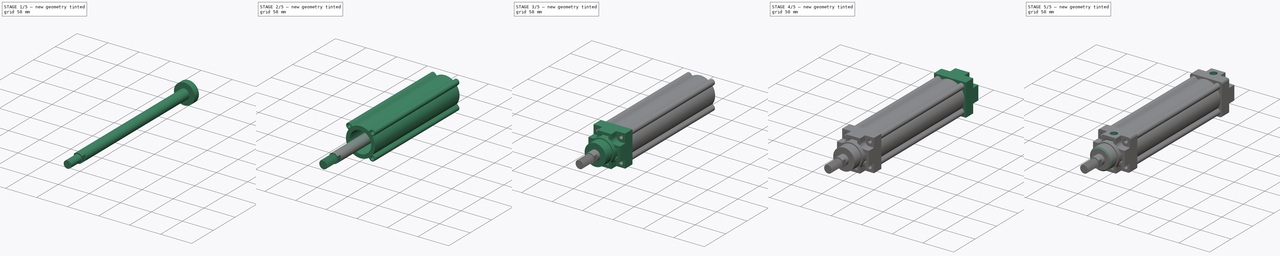
[diagram: build sequence overview — one tinted view per stage of 5, left to right]
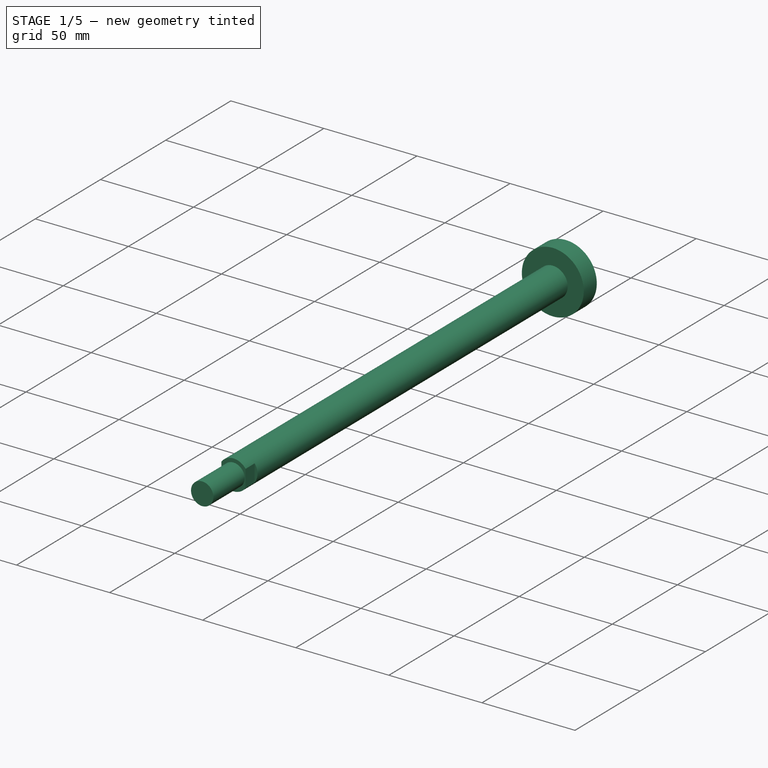
[diagram: stage 1 of 5 — iso view after this stage's code; geometry added in this stage tinted green]
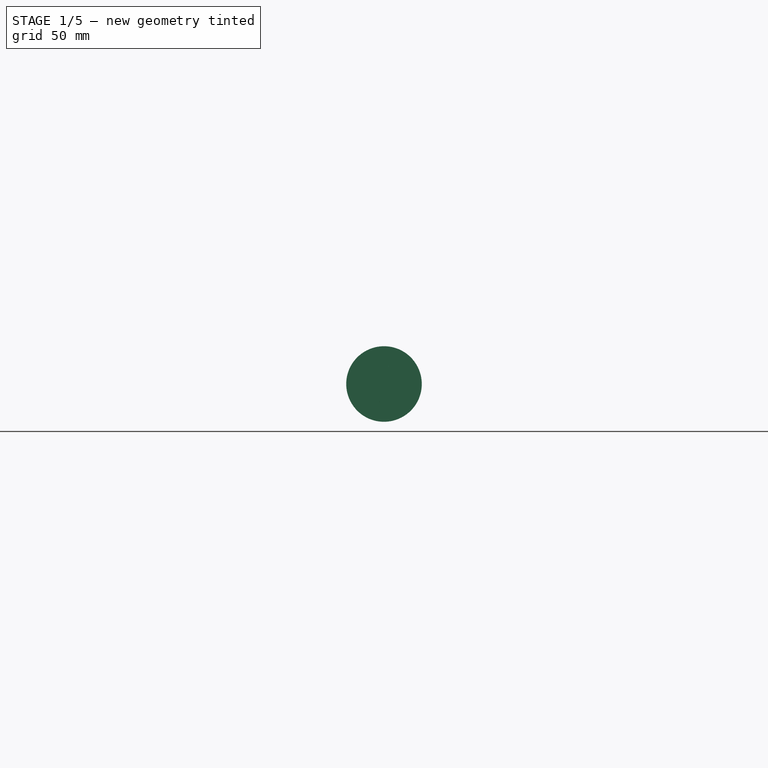
[diagram: stage 1 of 5 — front view after this stage's code; geometry added in this stage tinted green]
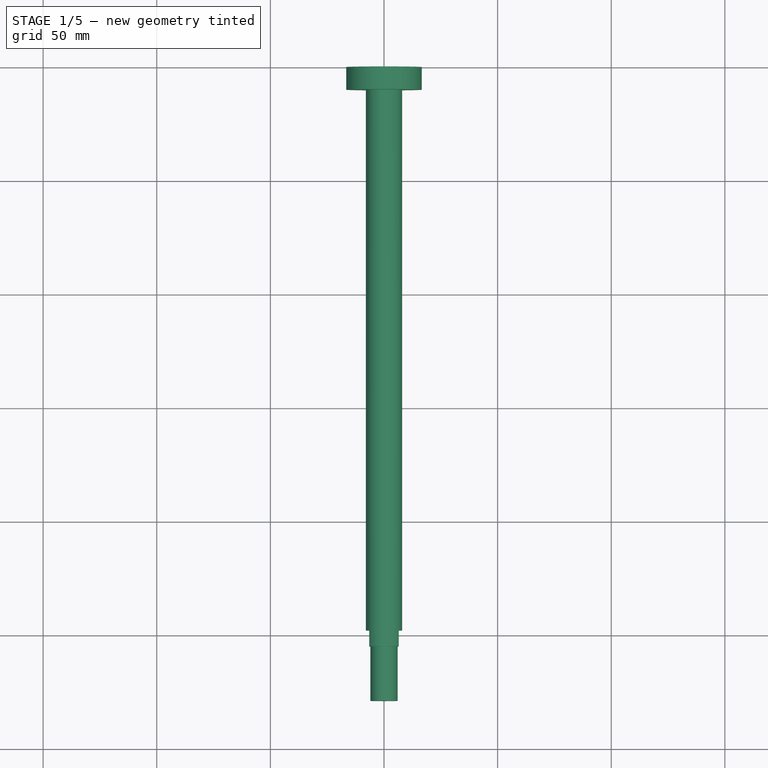
[diagram: stage 1 of 5 — top view after this stage's code; geometry added in this stage tinted green]
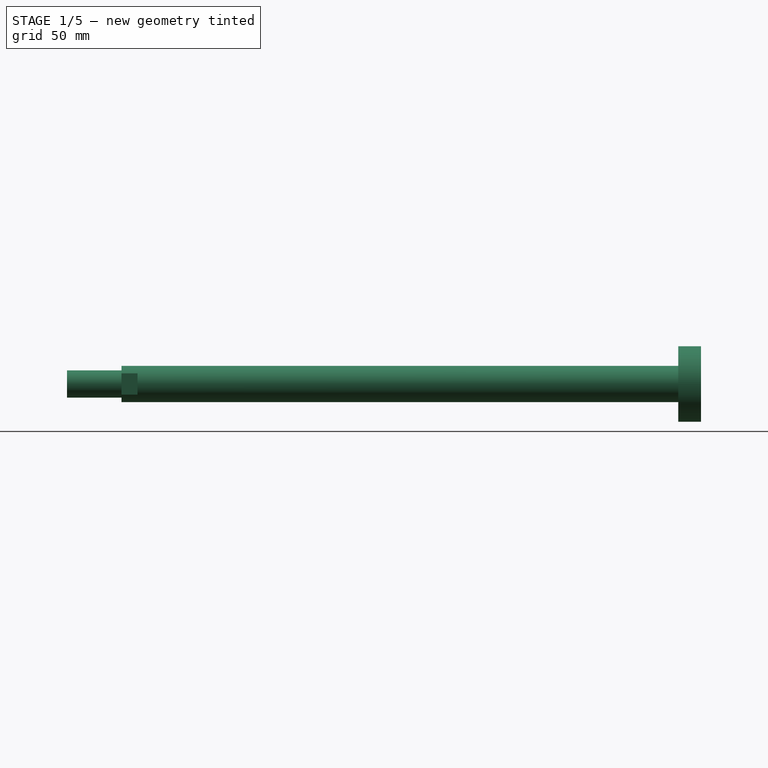
[diagram: stage 1 of 5 — right view after this stage's code; geometry added in this stage tinted green]
FCSTD DOCUMENT  (FreeCAD 0.17R13509 (Git))
Label: DA-40-XXX-TCA
License: CreativeCommons Attribution-ShareAlike
LicenseURL: http://creativecommons.org/licenses/by-sa/4.0/
objects: Sketcher::SketchObject×13, PartDesign::Pad×10, PartDesign::Body×3, PartDesign::Mirrored×2, PartDesign::Pocket×2, Spreadsheet::Sheet×1, PartDesign::Fillet×1, PartDesign::Chamfer×1, Part::Helix×1, App::MeasureDistance×1, PartDesign::ShapeBinder×1, PartDesign::AdditivePipe×1, Part::Fuse×1, App::Part×1
note: 49 computed .brp shape members not serialized (recipe doc carries the construction recipe); baked Part::Feature solids carry a one-line shape summary decoded from their .brp

FEATURE [PartDesign::Body] Body  label="Barrel+Endcap"
  Group = -> [Sketch,Pad,Sketch001,Pad001,Sketch002,Pad002,Sketch003,Pad003,Sketch004,Pad004,Mirrored,Mirrored001,Sketch005,Pad005,Fillet,Chamfer,Sketch006,Pocket,Sketch007,Pad006]
  Origin = -> Origin001
  Tip = -> Pad006
FEATURE [Sketcher::SketchObject] Sketch008
  MapMode = 5
  Placement = pos=(0,0,0) rot=(1,0,0;1.5708rad)
  Support = -> [XZ_Plane002]
  expr: Constraints[1] = Medidas.b / 2 * 0.94999999999999996
  sketch-geometry (1):
    g0: Circle CenterX=0 CenterY=0 CenterZ=0 NormalX=0 NormalY=0 NormalZ=1 AngleXU=0 Radius=16.625
  constraints (2):
    c: Coincident(g0,g-1)
    c: Radius(g0) = 16.625
FEATURE [PartDesign::Pad] Pad007
  Length = 10
  Length2 = 100
  Placement = pos=(0,0,0) rot=(1,0,0;1.5708rad)
  Profile = -> Sketch008
  Refine = true
  Type = 0
FEATURE [Sketcher::SketchObject] Sketch009
  MapMode = 5
  Placement = pos=(0,0,0) rot=(-1,0,0;1.5708rad)
  Support = -> [Pad007]
  expr: Constraints[1] = Medidas.mmm / 2
  sketch-geometry (1):
    g0: Circle CenterX=0 CenterY=0 CenterZ=0 NormalX=0 NormalY=0 NormalZ=1 AngleXU=0 Radius=8
  constraints (2):
    c: Coincident(g0,g-1)
    c: Radius(g0) = 8
FEATURE [PartDesign::Pad] Pad008
  BaseFeature = -> Pad007
  Length = 255
  Length2 = 100
  Placement = pos=(0,0,0) rot=(1,0,0;1.5708rad)
  Profile = -> Sketch009
  Refine = true
  Reversed = true
  Type = 0
  expr: Length = Medidas.l8 + Medidas.carrera
FEATURE [Sketcher::SketchObject] Sketch010
  MapMode = 5
  Placement = pos=(0,-255,-2.6e-11) rot=(1,0,0;1.5708rad)
  Support = -> [Pad008]
  expr: Constraints[22] = Medidas.sw
  expr: Constraints[19] = Medidas.sw
  sketch-geometry (8):
    g0: LineSegment StartX=-19.5 StartY=6.5 StartZ=0 EndX=-6.5 EndY=6.5 EndZ=0
    g1: LineSegment StartX=-6.5 StartY=6.5 StartZ=0 EndX=-6.5 EndY=-6.5 EndZ=0
    g2: LineSegment StartX=-6.5 StartY=-6.5 StartZ=0 EndX=-19.5 EndY=-6.5 EndZ=0
    g3: LineSegment StartX=-19.5 StartY=-6.5 StartZ=0 EndX=-19.5 EndY=6.5 EndZ=0
    g4: LineSegment StartX=19.5 StartY=6.5 StartZ=0 EndX=6.5 EndY=6.5 EndZ=0
    g5: LineSegment StartX=6.5 StartY=6.5 StartZ=0 EndX=6.5 EndY=-6.5 EndZ=0
    g6: LineSegment StartX=6.5 StartY=-6.5 StartZ=0 EndX=19.5 EndY=-6.5 EndZ=0
    g7: LineSegment StartX=19.5 StartY=-6.5 StartZ=0 EndX=19.5 EndY=6.5 EndZ=0
  constraints (23):
    c: Coincident(g0,g1)
    c: Coincident(g1,g2)
    c: Coincident(g2,g3)
    c: Coincident(g3,g0)
    c: Horizontal(g0)
    c: Horizontal(g2)
    c: Vertical(g1)
    c: Vertical(g3)
    c: Coincident(g4,g5)
    c: Coincident(g5,g6)
    c: Coincident(g6,g7)
    c: Coincident(g7,g4)
    c: Horizontal(g4)
    c: Horizontal(g6)
    c: Vertical(g5)
    c: Vertical(g7)
    c: Symmetric(g0,g4,g-2)
    c: Equal(g5,g1)
    c: Equal(g6,g2)
    c: DistanceX(g0,g4) = 13
    c: Symmetric(g0,g2,g-1)
    c: Equal(g0,g3)
    c: DistanceX(g0,g0) = 13
FEATURE [PartDesign::Pocket] Pocket001
  BaseFeature = -> Pad008
  Length = 7
  Length2 = 100
  Placement = pos=(0,0,0) rot=(1,0,0;1.5708rad)
  Profile = -> Sketch010
  Refine = true
  Type = 0
  expr: Length = Medidas.kw
FEATURE [PartDesign::Body] Body002  label="Thread"
  Group = -> [Sketch012,AdditivePipe,ReferenceHelix001]
  Origin = -> Origin003
  Placement = pos=(0,-279,0) rot=(0,0,1;0rad)
  Tip = -> AdditivePipe
  expr: Placement.Base.y = -Medidas.l8 - Medidas.carrera - Medidas.l2 - 3
FEATURE [PartDesign::Pad] Pad009
  BaseFeature = -> Pocket001
  Length = 24
  Length2 = 100
  Placement = pos=(0,0,0) rot=(1,0,0;1.5708rad)
  Profile = -> Sketch011
  Refine = true
  Type = 0
  expr: Length = Medidas.am
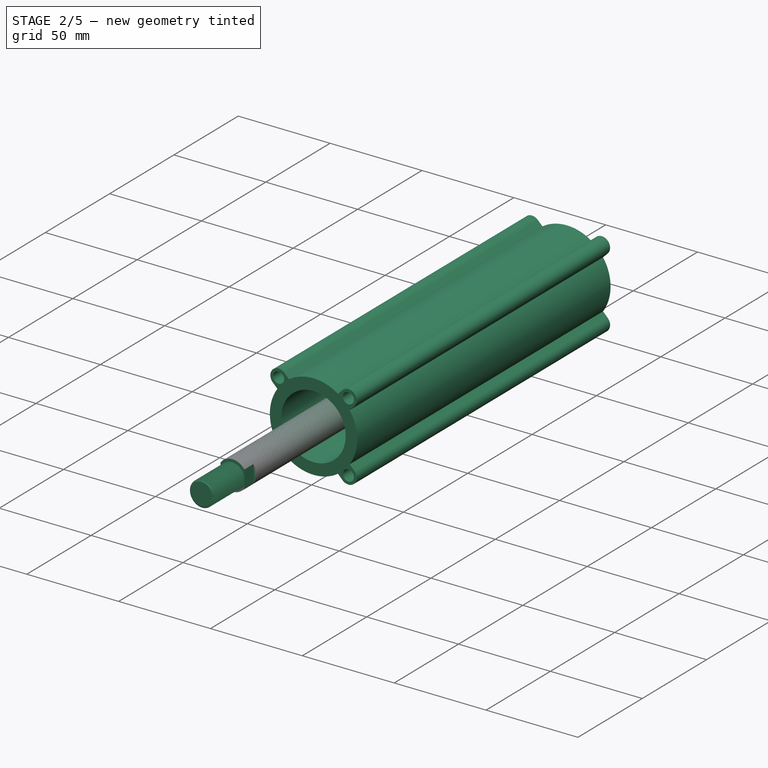
[diagram: stage 2 of 5 — iso view after this stage's code; geometry added in this stage tinted green]
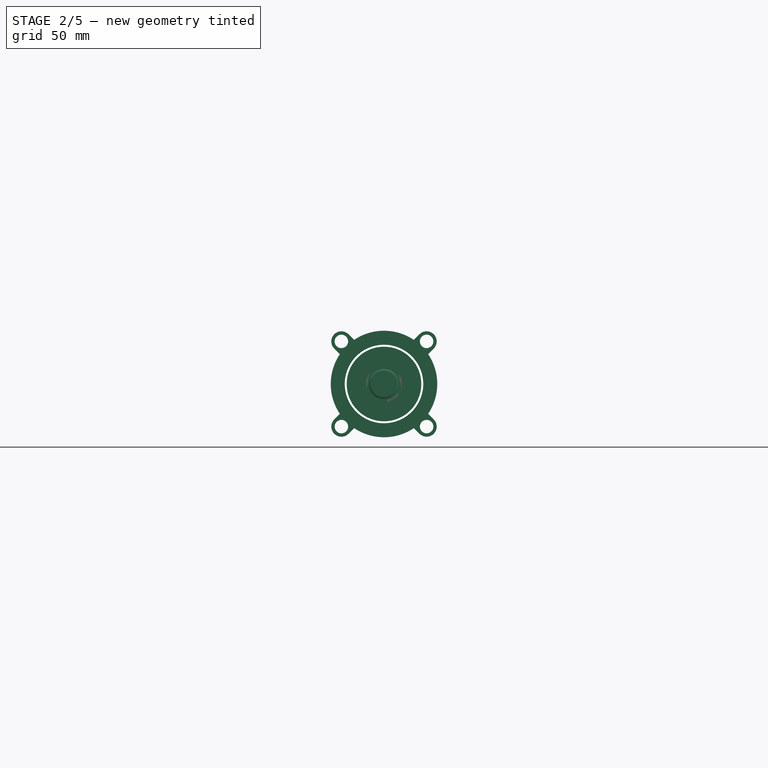
[diagram: stage 2 of 5 — front view after this stage's code; geometry added in this stage tinted green]
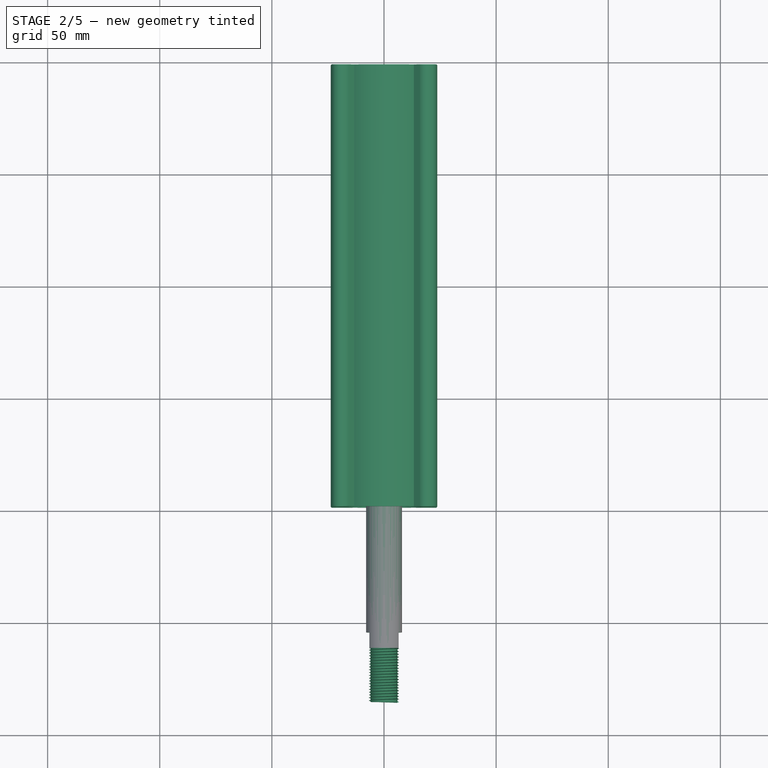
[diagram: stage 2 of 5 — top view after this stage's code; geometry added in this stage tinted green]
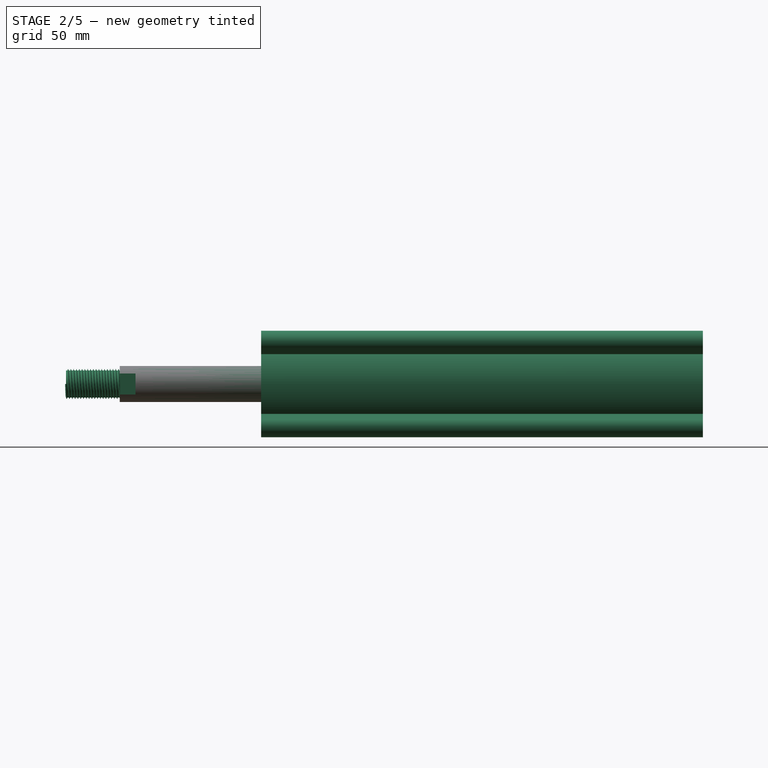
[diagram: stage 2 of 5 — right view after this stage's code; geometry added in this stage tinted green]
FEATURE [Spreadsheet::Sheet] Spreadsheet  label="Medidas"
  cells = A1=Medidas Tabla; A2=CARRERRA001; B2(carrera)=150; C2=Delta Carrera; D2(delta)=5; A3=Ø; B3(diametro)=40; A4=AM; B4(am)=24; A5=B; B5(b)=35; A6=BG; B6(bg)=12; A7=EE; B7(ee)=52; A8=EEE; B8(eee)=11; C8=1/4 NPT; A9=GG; B9(gg)=29; A10=KK; B10(kk)=12; C10(kkp)=1.25; A11=KV; B11(kv)=19; A12=KW; B12(kw)=7; A13=L2; B13(l2)=21; A14=L8; B14(l8)=105; A15=MMM; B15(mmm)=16; A16=PL; B16(pl)=11.5; A17=RT; B17(rt)=6; A18=SW; B18(sw)=13; A19=TG; B19(tg)=38; A20=VA; B20(va)=4; A21=VD; B21(vd)=6; A22=VF; B22(vf)=12; A23=VG; B23(vg)=54; A24=WH; B24(wh)=30; A25=XD; B25(xd)=160; A26=AH; B26(ah)=36; A27=SA; B27(sa)=161; A28=XA; B28(xa)=163; A29=Peso Carrera 0; B29=730; A30=(gr.) Cada 10mm; B30=32; A31=Peso Total; B31==B29 + B2 / 10 * B30
FEATURE [Sketcher::SketchObject] Sketch
  MapMode = 5
  Placement = pos=(0,0,0) rot=(1,0,0;1.5708rad)
  Support = -> [XZ_Plane001]
  expr: Constraints[76] = Medidas.rt / 2 * 1.5
  expr: Constraints[72] = Medidas.tg
  expr: Constraints[74] = Medidas.tg * 0.625
  expr: Constraints[75] = Medidas.b / 2
  expr: Constraints[73] = Medidas.rt / 2
  sketch-geometry (29):
    g0: LineSegment [constr] StartX=-19 StartY=19 StartZ=0 EndX=19 EndY=19 EndZ=0
    g1: LineSegment [constr] StartX=19 StartY=19 StartZ=0 EndX=19 EndY=-19 EndZ=0
    g2: LineSegment [constr] StartX=19 StartY=-19 StartZ=0 EndX=-19 EndY=-19 EndZ=0
    g3: LineSegment [constr] StartX=-19 StartY=-19 StartZ=0 EndX=-19 EndY=19 EndZ=0
    g4: LineSegment [constr] StartX=-19 StartY=19 StartZ=0 EndX=0 EndY=0 EndZ=0
    g5: LineSegment [constr] StartX=0 StartY=0 StartZ=0 EndX=19 EndY=-19 EndZ=0
    g6: LineSegment StartX=22.182 StartY=15.818 StartZ=0 EndX=19.6716 EndY=13.3076 EndZ=0
    g7: LineSegment StartX=13.3076 StartY=19.6716 StartZ=0 EndX=15.818 EndY=22.182 EndZ=0
    g8: LineSegment [constr] StartX=0 StartY=0 StartZ=0 EndX=23.75 EndY=0 EndZ=0
    g9: ArcOfCircle CenterX=19 CenterY=19 CenterZ=0 NormalX=0 NormalY=0 NormalZ=1 AngleXU=0 Radius=4.5 StartAngle=5.49779 EndAngle=8.63938
    g10: ArcOfCircle CenterX=0 CenterY=0 CenterZ=0 NormalX=0 NormalY=0 NormalZ=1 AngleXU=0 Radius=23.75 StartAngle=0.976024 EndAngle=2.16557
    g11: LineSegment StartX=22.182 StartY=-15.818 StartZ=0 EndX=19.6716 EndY=-13.3076 EndZ=0
    g12: ArcOfCircle CenterX=19 CenterY=-19 CenterZ=0 NormalX=0 NormalY=0 NormalZ=1 AngleXU=0 Radius=4.5 StartAngle=3.92699 EndAngle=7.06858
    g13: LineSegment StartX=13.3076 StartY=-19.6716 StartZ=0 EndX=15.818 EndY=-22.182 EndZ=0
    g14: LineSegment [constr] StartX=0 StartY=0 StartZ=0 EndX=0 EndY=23.75 EndZ=0
    g15: LineSegment StartX=-22.182 StartY=15.818 StartZ=0 EndX=-19.6716 EndY=13.3076 EndZ=0
    g16: ArcOfCircle CenterX=-19 CenterY=19 CenterZ=0 NormalX=0 NormalY=0 NormalZ=1 AngleXU=0 Radius=4.5 StartAngle=0.785398 EndAngle=3.92699
    g17: LineSegment StartX=-13.3076 StartY=19.6716 StartZ=0 EndX=-15.818 EndY=22.182 EndZ=0
    g18: LineSegment StartX=-22.182 StartY=-15.818 StartZ=0 EndX=-19.6716 EndY=-13.3076 EndZ=0
    g19: ArcOfCircle CenterX=-19 CenterY=-19 CenterZ=0 NormalX=0 NormalY=0 NormalZ=1 AngleXU=0 Radius=4.5 StartAngle=2.35619 EndAngle=5.49779
    g20: LineSegment StartX=-13.3076 StartY=-19.6716 StartZ=0 EndX=-15.818 EndY=-22.182 EndZ=0
    g21: ArcOfCircle CenterX=0 CenterY=0 CenterZ=0 NormalX=0 NormalY=0 NormalZ=1 AngleXU=0 Radius=23.75 StartAngle=2.54682 EndAngle=3.73636
    g22: ArcOfCircle CenterX=0 CenterY=0 CenterZ=0 NormalX=0 NormalY=0 NormalZ=1 AngleXU=0 Radius=23.75 StartAngle=4.11762 EndAngle=5.30716
    g23: ArcOfCircle CenterX=0 CenterY=0 CenterZ=0 NormalX=0 NormalY=0 NormalZ=1 AngleXU=0 Radius=23.75 StartAngle=5.68841 EndAngle=6.87796
    g24: Circle CenterX=0 CenterY=0 CenterZ=0 NormalX=0 NormalY=0 NormalZ=1 AngleXU=0 Radius=17.5
    g25: Circle CenterX=19 CenterY=19 CenterZ=0 NormalX=0 NormalY=0 NormalZ=1 AngleXU=0 Radius=3
    g26: Circle CenterX=-19 CenterY=19 CenterZ=0 NormalX=0 NormalY=0 NormalZ=1 AngleXU=0 Radius=3
    g27: Circle CenterX=-19 CenterY=-19 CenterZ=0 NormalX=0 NormalY=0 NormalZ=1 AngleXU=0 Radius=3
    g28: Circle CenterX=19 CenterY=-19 CenterZ=0 NormalX=0 NormalY=0 NormalZ=1 AngleXU=0 Radius=3
  constraints (78):
    c: Coincident(g0,g1)
    c: Coincident(g1,g2)
    c: Coincident(g2,g3)
    c: Coincident(g3,g0)
    c: Horizontal(g0)
    c: Horizontal(g2)
    c: Vertical(g1)
    c: Vertical(g3)
    c: Coincident(g0,g4)
    c: Coincident(g4,g-1)
    c: Coincident(g4,g5)
    c: Coincident(g5,g1)
    c: Equal(g5,g4)
    c: Parallel(g5,g4)
    c: Equal(g3,g0)
    c: Parallel(g6,g7)
    c: Coincident(g-1,g8)
    c: Horizontal(g8)
    c: Angle(g8,g6) = 0.785398
    c: Coincident(g9,g0)
    c: Coincident(g9,g6)
    c: Coincident(g10,g-1)
    c: Parallel(g11,g13)
    c: Tangent(g12,g13) = -1.5708
    c: Tangent(g12,g11) = -1.5708
    c: PointOnObject(g11,g10)
    c: PointOnObject(g13,g10)
    c: Perpendicular(g6,g11)
    c: Coincident(g12,g1)
    c: Equal(g11,g6)
    c: Tangent(g9,g7) = 1.5708
    c: Equal(g9,g12)
    c: Coincident(g-1,g14)
    c: Vertical(g14)
    c: PointOnObject(g14,g10)
    c: Parallel(g15,g17)
    c: Parallel(g18,g20)
    c: Tangent(g19,g20) = 1.5708
    c: Tangent(g19,g18) = 1.5708
    c: Perpendicular(g15,g18)
    c: Equal(g18,g15)
    c: Tangent(g16,g17) = -1.5708
    c: Equal(g16,g19)
    c: Perpendicular(g7,g17)
    c: Equal(g12,g19)
    c: Coincident(g19,g2)
    c: Coincident(g0,g16)
    c: PointOnObject(g20,g10)
    c: Tangent(g16,g15) = -1.5708
    c: PointOnObject(g15,g10)
    c: Coincident(g10,g7)
    c: Coincident(g23,g6)
    c: Equal(g10,g21)
    c: Coincident(g10,g17)
    c: Coincident(g10,g21)
    c: Equal(g21,g22)
    c: PointOnObject(g21,g18)
    c: PointOnObject(g22,g20)
    c: Coincident(g21,g22)
    c: Equal(g22,g23)
    c: PointOnObject(g23,g11)
    c: Coincident(g22,g23)
    c: PointOnObject(g22,g13)
    c: PointOnObject(g21,g15)
    c: Coincident(g24,g-1)
    c: Coincident(g25,g0)
    c: Coincident(g26,g0)
    c: Coincident(g27,g2)
    c: Coincident(g28,g1)
    c: Equal(g28,g25)
    c: Equal(g25,g26)
    c: Equal(g26,g27)
    c: DistanceX(g0,g0) = 38
    c: Radius(g28) = 3
    c: Radius(g23) = 23.75
    c: Radius(g24) = 17.5
    c: Radius(g12) = 4.5
    c: PointOnObject(g8,g23)
FEATURE [PartDesign::Pad] Pad
  Length = 197
  Length2 = 100
  Midplane = true
  Placement = pos=(0,0,0) rot=(1,0,0;1.5708rad)
  Profile = -> Sketch
  Refine = true
  Type = 0
  expr: Length = Medidas.l8 + Medidas.carrera - 2 * Medidas.gg
FEATURE [Sketcher::SketchObject] Sketch011
  MapMode = 5
  Placement = pos=(0,-255,-2.6e-11) rot=(1,0,0;1.5708rad)
  Support = -> [Pocket001]
  expr: Constraints[1] = Medidas.kk / 2
  sketch-geometry (1):
    g0: Circle CenterX=0 CenterY=0 CenterZ=0 NormalX=0 NormalY=0 NormalZ=1 AngleXU=0 Radius=6
  constraints (2):
    c: Coincident(g0,g-1)
    c: Radius(g0) = 6
FEATURE [Part::Helix] Helix  label="Thread Helice"
  Angle = 0
  AttacherType = Attacher::AttachEngine3D
  Height = 24
  LocalCoord = 0
  Pitch = 1.25
  Placement = pos=(0,0,0) rot=(-1,0,0;1.5708rad)
  Radius = 6
  Style = 1
  expr: Radius = Medidas.kk / 2
  expr: Height = Medidas.am
  expr: Pitch = Medidas.kkp
FEATURE [App::MeasureDistance] Distance  label="WH"
  Distance = 44
  P1 = (0,-171.5,0)
  P2 = (0,-127.5,0)
  expr: P2.y = -(Medidas.l8 + Medidas.carrera) / 2
FEATURE [Sketcher::SketchObject] Sketch012
  MapMode = 5
  Support = -> [XY_Plane003]
  expr: Constraints[6] = Medidas.kk / 2 * 0.95999999999999996
  sketch-geometry (3):
    g0: LineSegment StartX=5.76 StartY=0.4 StartZ=0 EndX=5.76 EndY=-0.4 EndZ=0
    g1: LineSegment StartX=5.76 StartY=-0.4 StartZ=0 EndX=6.76 EndY=0 EndZ=0
    g2: LineSegment StartX=6.76 StartY=0 StartZ=0 EndX=5.76 EndY=0.4 EndZ=0
  constraints (9):
    c: Vertical(g0)
    c: Coincident(g0,g1)
    c: PointOnObject(g1,g-1)
    c: Coincident(g1,g2)
    c: Coincident(g2,g0)
    c: Symmetric(g0,g0,g-1)
    c: DistanceX(g-1,g0) = 5.76
    c: DistanceX(g0,g1) = 1
    c: DistanceY(g0,g0) = 0.8
FEATURE [PartDesign::ShapeBinder] ReferenceHelix001  label="ReferenceHelix"
  Placement = pos=(0,0,0) rot=(-1,0,0;1.5708rad)
  Support = -> [Helix]
FEATURE [PartDesign::AdditivePipe] AdditivePipe
  AuxilleryCurvelinear = true
  AuxillerySpineTangent = false
  Binormal = (0,0,0)
  Mode = 2
  Profile = -> Sketch012
  Refine = true
  Spine = -> ReferenceHelix001 [Edge1,Edge2,Edge3,Edge4,Edge5,Edge6,Edge7,Edge8,Edge9,Edge10,Edge11,Edge12,Edge13,Edge14,Edge15,Edge16,Edge17,Edge18,Edge19,Edge20]
  SpineTangent = false
  Transformation = 0
  Transition = 0
FEATURE [PartDesign::Body] Body001  label="Piston+rod"
  Group = -> [Sketch008,Pad007,Sketch009,Pad008,Sketch010,Pocket001,Sketch011,Pad009]
  Origin = -> Origin002
  Tip = -> Pad009
FEATURE [Part::Fuse] Fusion  label="Piston Rod"
  Base = -> Body001
  Placement = pos=(0,93.5,0) rot=(0,0,1;0rad)
  Refine = true
  Tool = -> Body002
  expr: Placement.Base.y = (Medidas.l8 + Medidas.carrera) / 2 - Medidas.gg + -Medidas.delta
FEATURE [App::Part] Part
  Group = -> [Body,Body001,Helix,Body002,Fusion]
  Id = DA-XX-XXX-TCA
  License = CC BY 3.0
  LicenseURL = http://creativecommons.org/licenses/by/3.0/
  Origin = -> Origin
  Type = Pneumatic cylinder
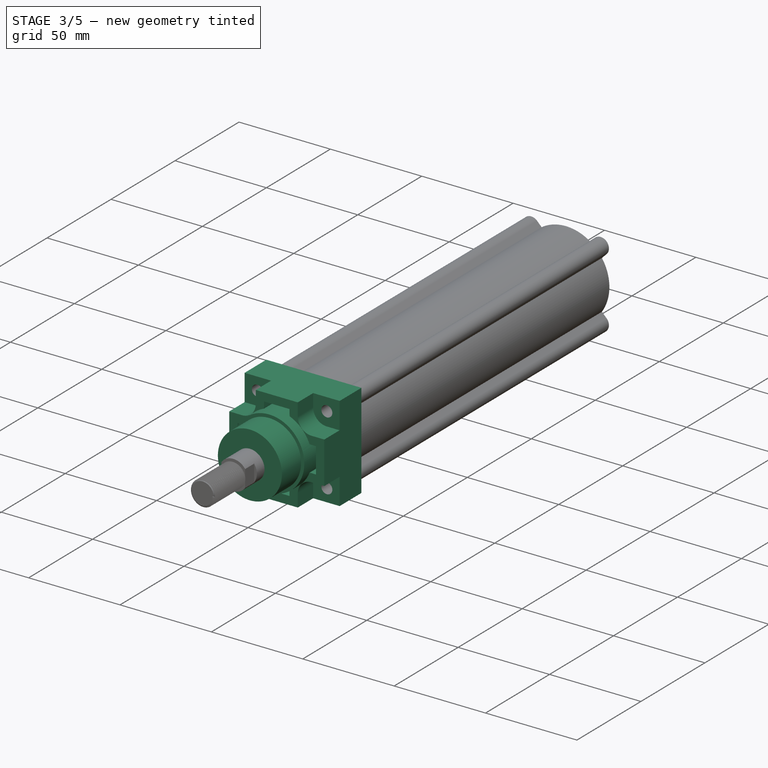
[diagram: stage 3 of 5 — iso view after this stage's code; geometry added in this stage tinted green]
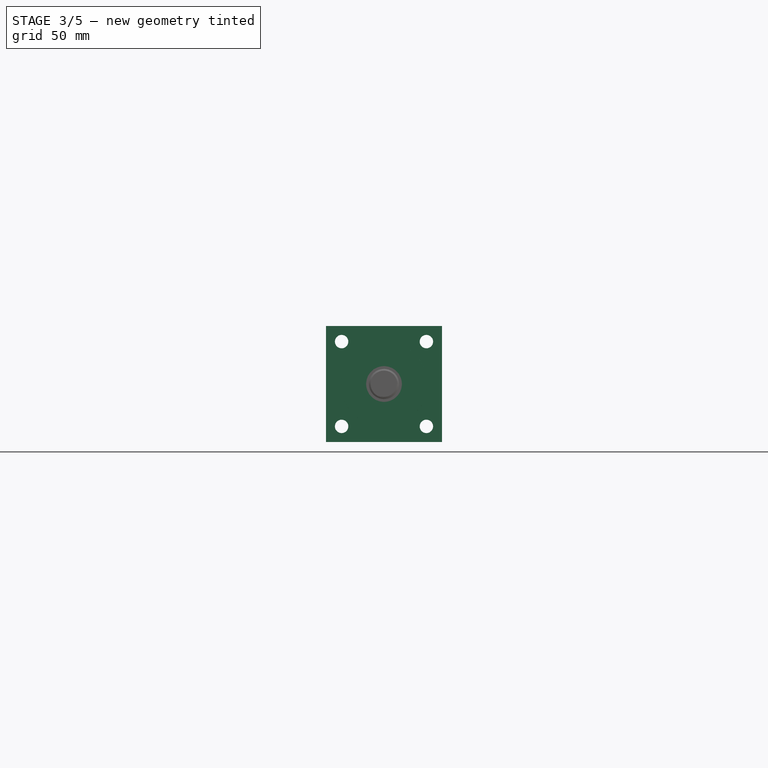
[diagram: stage 3 of 5 — front view after this stage's code; geometry added in this stage tinted green]
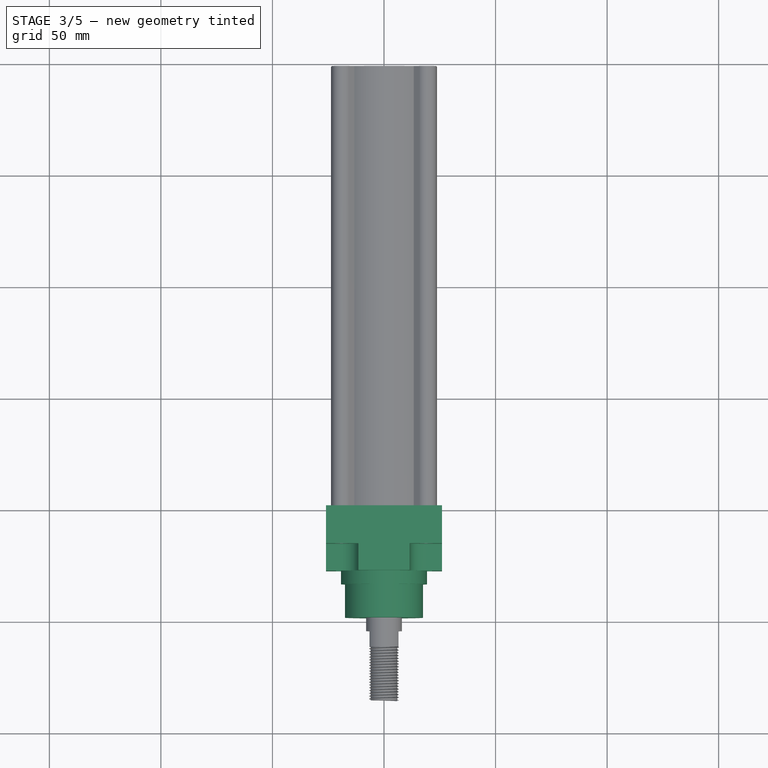
[diagram: stage 3 of 5 — top view after this stage's code; geometry added in this stage tinted green]
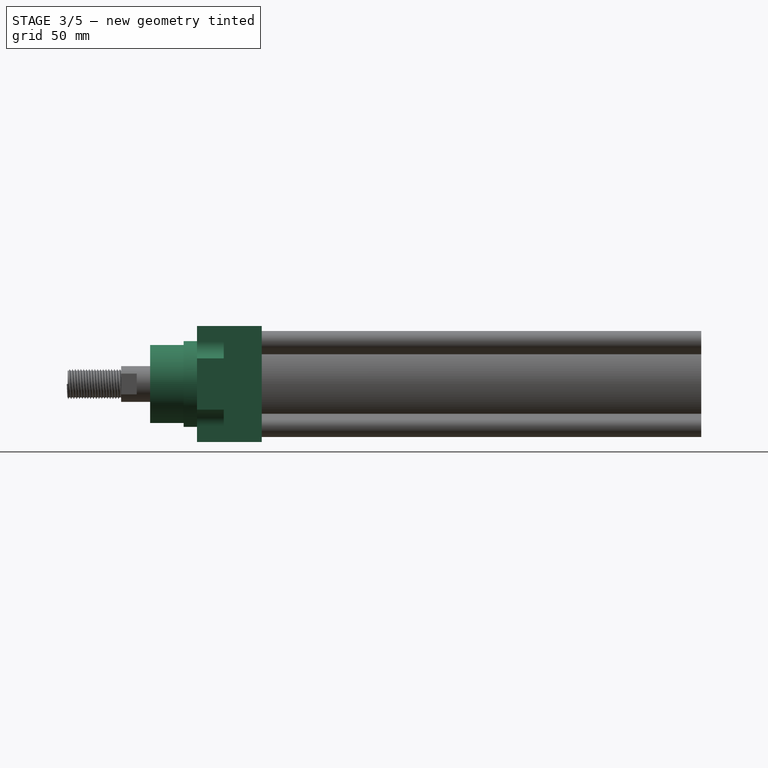
[diagram: stage 3 of 5 — right view after this stage's code; geometry added in this stage tinted green]
FEATURE [Sketcher::SketchObject] Sketch001
  ExternalGeometry = -> [Pad]
  MapMode = 5
  Placement = pos=(0,-98.5,-1e-11) rot=(1,0,0;1.5708rad)
  Support = -> [Pad]
  expr: Constraints[37] = Medidas.mmm / 2
  expr: Constraints[15] = Medidas.ee
  expr: Constraints[33] = Medidas.tg
  expr: Constraints[32] = Medidas.rt / 2
  sketch-geometry (15):
    g0: LineSegment StartX=-26 StartY=26 StartZ=0 EndX=26 EndY=26 EndZ=0
    g1: LineSegment StartX=26 StartY=26 StartZ=0 EndX=26 EndY=-26 EndZ=0
    g2: LineSegment StartX=26 StartY=-26 StartZ=0 EndX=-26 EndY=-26 EndZ=0
    g3: LineSegment StartX=-26 StartY=-26 StartZ=0 EndX=-26 EndY=26 EndZ=0
    g4: LineSegment [constr] StartX=-26 StartY=26 StartZ=0 EndX=0 EndY=0 EndZ=0
    g5: LineSegment [constr] StartX=0 StartY=0 StartZ=0 EndX=26 EndY=-26 EndZ=0
    g6: Circle CenterX=-19 CenterY=19 CenterZ=0 NormalX=0 NormalY=0 NormalZ=1 AngleXU=0 Radius=3
    g7: Circle CenterX=19 CenterY=19 CenterZ=0 NormalX=0 NormalY=0 NormalZ=1 AngleXU=0 Radius=3
    g8: Circle CenterX=19 CenterY=-19 CenterZ=0 NormalX=0 NormalY=0 NormalZ=1 AngleXU=0 Radius=3
    g9: Circle CenterX=-19 CenterY=-19 CenterZ=0 NormalX=0 NormalY=0 NormalZ=1 AngleXU=0 Radius=3
    g10: LineSegment [constr] StartX=-19 StartY=19 StartZ=0 EndX=19 EndY=19 EndZ=0
    g11: LineSegment [constr] StartX=19 StartY=19 StartZ=0 EndX=19 EndY=-19 EndZ=0
    g12: LineSegment [constr] StartX=19 StartY=-19 StartZ=0 EndX=-19 EndY=-19 EndZ=0
    g13: LineSegment [constr] StartX=-19 StartY=-19 StartZ=0 EndX=-19 EndY=19 EndZ=0
    g14: Circle CenterX=0 CenterY=0 CenterZ=0 NormalX=0 NormalY=0 NormalZ=1 AngleXU=0 Radius=8
  constraints (38):
    c: Coincident(g0,g1)
    c: Coincident(g1,g2)
    c: Coincident(g2,g3)
    c: Coincident(g3,g0)
    c: Horizontal(g0)
    c: Horizontal(g2)
    c: Vertical(g1)
    c: Vertical(g3)
    c: Coincident(g0,g4)
    c: Coincident(g4,g-1)
    c: Coincident(g4,g5)
    c: Coincident(g5,g1)
    c: Parallel(g5,g4)
    c: Equal(g5,g4)
    c: Equal(g0,g3)
    c: DistanceX(g2,g2) = 52
    c: PointOnObject(g6,g4)
    c: Coincident(g10,g11)
    c: Coincident(g11,g12)
    c: Coincident(g12,g13)
    c: Coincident(g13,g10)
    c: Horizontal(g10)
    c: Horizontal(g12)
    c: Vertical(g11)
    c: Vertical(g13)
    c: Coincident(g10,g6)
    c: Coincident(g11,g8)
    c: Coincident(g7,g10)
    c: Coincident(g12,g9)
    c: Equal(g9,g8)
    c: Equal(g8,g7)
    c: Equal(g7,g6)
    c: Radius(g6) = 3
    c: DistanceX(g10,g10) = 38
    c: Equal(g13,g10)
    c: Symmetric(g7,g6,g-2)
    c: Coincident(g14,g-1)
    c: Radius(g14) = 8
FEATURE [PartDesign::Pad] Pad001
  BaseFeature = -> Pad
  Length = 17
  Length2 = 100
  Placement = pos=(0,0,0) rot=(1,0,0;1.5708rad)
  Profile = -> Sketch001
  Refine = true
  Type = 0
  expr: Length = Medidas.gg - Medidas.bg
FEATURE [Sketcher::SketchObject] Sketch002
  ExternalGeometry = -> [Pad001]
  MapMode = 5
  Placement = pos=(0,-115.5,-1.2e-11) rot=(1,0,0;1.5708rad)
  Support = -> [Pad001]
  expr: Constraints[114] = Medidas.rt * 1.25 + 4.5
  expr: Constraints[48] = Medidas.rt * 1.25
  expr: Constraints[45] = Medidas.tg - 2.5 * Medidas.rt
  sketch-geometry (37):
    g0: LineSegment StartX=-26 StartY=11.5 StartZ=0 EndX=-26 EndY=-11.5 EndZ=0
    g1: LineSegment StartX=-26 StartY=-11.5 StartZ=0 EndX=-19 EndY=-11.5 EndZ=0
    g2: LineSegment StartX=-11.5 StartY=-19 StartZ=0 EndX=-11.5 EndY=-26 EndZ=0
    g3: LineSegment StartX=-11.5 StartY=-26 StartZ=0 EndX=11.5 EndY=-26 EndZ=0
    g4: LineSegment StartX=11.5 StartY=-26 StartZ=0 EndX=11.5 EndY=-19 EndZ=0
    g5: LineSegment StartX=19 StartY=-11.5 StartZ=0 EndX=26 EndY=-11.5 EndZ=0
    g6: LineSegment StartX=26 StartY=-11.5 StartZ=0 EndX=26 EndY=11.5 EndZ=0
    g7: LineSegment StartX=26 StartY=11.5 StartZ=0 EndX=19 EndY=11.5 EndZ=0
    g8: LineSegment StartX=11.5 StartY=19 StartZ=0 EndX=11.5 EndY=26 EndZ=0
    g9: LineSegment StartX=11.5 StartY=26 StartZ=0 EndX=-11.5 EndY=26 EndZ=0
    g10: LineSegment StartX=-11.5 StartY=26 StartZ=0 EndX=-11.5 EndY=19 EndZ=0
    g11: LineSegment StartX=-19 StartY=11.5 StartZ=0 EndX=-26 EndY=11.5 EndZ=0
    g12: ArcOfCircle CenterX=-19 CenterY=19 CenterZ=0 NormalX=0 NormalY=0 NormalZ=1 AngleXU=0 Radius=7.5 StartAngle=4.71239 EndAngle=6.28319
    g13: ArcOfCircle CenterX=-19 CenterY=-19 CenterZ=0 NormalX=0 NormalY=0 NormalZ=1 AngleXU=0 Radius=7.5 StartAngle=0 EndAngle=1.5708
    g14: ArcOfCircle CenterX=19 CenterY=-19 CenterZ=0 NormalX=0 NormalY=0 NormalZ=1 AngleXU=0 Radius=7.5 StartAngle=1.5708 EndAngle=3.14159
    g15: ArcOfCircle CenterX=19 CenterY=19 CenterZ=0 NormalX=0 NormalY=0 NormalZ=1 AngleXU=0 Radius=7.5 StartAngle=3.14159 EndAngle=4.71239
    g16: LineSegment StartX=-7 StartY=21.5 StartZ=0 EndX=-7 EndY=19 EndZ=0
    g17: LineSegment StartX=-19 StartY=7 StartZ=0 EndX=-21.5 EndY=7 EndZ=0
    g18: LineSegment StartX=-21.5 StartY=7 StartZ=0 EndX=-21.5 EndY=-7 EndZ=0
    g19: LineSegment StartX=-21.5 StartY=-7 StartZ=0 EndX=-19 EndY=-7 EndZ=0
    g20: LineSegment StartX=-7 StartY=-19 StartZ=0 EndX=-7 EndY=-21.5 EndZ=0
    g21: LineSegment StartX=-7 StartY=-21.5 StartZ=0 EndX=7 EndY=-21.5 EndZ=0
    g22: LineSegment StartX=7 StartY=-21.5 StartZ=0 EndX=7 EndY=-19 EndZ=0
    g23: LineSegment StartX=19 StartY=-7 StartZ=0 EndX=21.5 EndY=-7 EndZ=0
    g24: LineSegment StartX=21.5 StartY=-7 StartZ=0 EndX=21.5 EndY=7 EndZ=0
    g25: LineSegment StartX=21.5 StartY=7 StartZ=0 EndX=19 EndY=7 EndZ=0
    g26: LineSegment StartX=7 StartY=19 StartZ=0 EndX=7 EndY=21.5 EndZ=0
    g27: LineSegment StartX=7 StartY=21.5 StartZ=0 EndX=-7 EndY=21.5 EndZ=0
    g28: LineSegment [constr] StartX=-21.5 StartY=-7 StartZ=0 EndX=-26 EndY=-7 EndZ=0
    g29: LineSegment [constr] StartX=21.5 StartY=-7 StartZ=0 EndX=26 EndY=-7 EndZ=0
    g30: LineSegment [constr] StartX=-7 StartY=21.5 StartZ=0 EndX=-7 EndY=26 EndZ=0
    g31: LineSegment [constr] StartX=-7 StartY=-21.5 StartZ=0 EndX=-7 EndY=-26 EndZ=0
    g32: LineSegment [constr] StartX=-21.5 StartY=-7 StartZ=0 EndX=-21.5 EndY=-11.5 EndZ=0
    g33: ArcOfCircle CenterX=-19 CenterY=19 CenterZ=0 NormalX=0 NormalY=0 NormalZ=1 AngleXU=0 Radius=12 StartAngle=4.71239 EndAngle=6.28319
    g34: ArcOfCircle CenterX=19 CenterY=19 CenterZ=0 NormalX=0 NormalY=0 NormalZ=1 AngleXU=0 Radius=12 StartAngle=3.14159 EndAngle=4.71239
    g35: ArcOfCircle CenterX=19 CenterY=-19 CenterZ=0 NormalX=0 NormalY=0 NormalZ=1 AngleXU=0 Radius=12 StartAngle=1.5708 EndAngle=3.14159
    g36: ArcOfCircle CenterX=-19 CenterY=-19 CenterZ=0 NormalX=0 NormalY=0 NormalZ=1 AngleXU=0 Radius=12 StartAngle=0 EndAngle=1.5708
  constraints (115):
    c: Coincident(g1,g0)
    c: Horizontal(g1)
    c: Vertical(g2)
    c: Coincident(g2,g3)
    c: Coincident(g3,g4)
    c: Vertical(g4)
    c: Horizontal(g5)
    c: Coincident(g5,g6)
    c: Coincident(g6,g7)
    c: Vertical(g8)
    c: Coincident(g8,g9)
    c: Horizontal(g9)
    c: Coincident(g9,g10)
    c: Coincident(g11,g0)
    c: Horizontal(g11)
    c: PointOnObject(g0,g-3)
    c: Symmetric(g0,g0,g-1)
    c: Symmetric(g6,g5,g-1)
    c: Symmetric(g8,g9,g-2)
    c: PointOnObject(g9,g-4)
    c: Vertical(g10)
    c: Horizontal(g7)
    c: Symmetric(g3,g2,g-2)
    c: PointOnObject(g3,g-6)
    c: Equal(g10,g8)
    c: Equal(g8,g7)
    c: Equal(g7,g5)
    c: Equal(g5,g4)
    c: Equal(g4,g2)
    c: Equal(g2,g1)
    c: Equal(g1,g11)
    c: Equal(g3,g0)
    c: Equal(g0,g9)
    c: Equal(g9,g6)
    c: Coincident(g12,g10)
    c: Coincident(g12,g11)
    c: Coincident(g13,g1)
    c: Coincident(g13,g2)
    c: Coincident(g14,g4)
    c: Coincident(g14,g5)
    c: Coincident(g15,g7)
    c: Coincident(g15,g8)
    c: Equal(g15,g12)
    c: Equal(g12,g13)
    c: Equal(g13,g14)
    c: DistanceX(g3,g3) = 23
    c: Vertical(g1,g13)
    c: PointOnObject(g6,g-5)
    c: Radius(g13) = 7.5
    c: Vertical(g16)
    c: Coincident(g17,g18)
    c: Vertical(g18)
    c: Coincident(g18,g19)
    c: Horizontal(g19)
    c: Vertical(g20)
    c: Coincident(g20,g21)
    c: Horizontal(g21)
    c: Coincident(g21,g22)
    c: Vertical(g22)
    c: Horizontal(g23)
    c: Coincident(g23,g24)
    c: Vertical(g24)
    c: Coincident(g24,g25)
    c: Horizontal(g25)
    c: Vertical(g26)
    c: Coincident(g26,g27)
    c: Coincident(g27,g16)
    c: Horizontal(g27)
    c: Symmetric(g26,g16,g-2)
    c: Symmetric(g17,g18,g-1)
    c: Symmetric(g20,g21,g-2)
    c: Symmetric(g23,g24,g-1)
    c: Equal(g24,g27)
    c: Equal(g27,g18)
    c: Equal(g18,g21)
    c: Equal(g20,g22)
    c: Equal(g22,g23)
    c: Equal(g23,g25)
    c: Equal(g25,g26)
    c: Equal(g26,g16)
    c: Equal(g16,g17)
    c: Equal(g17,g19)
    c: Horizontal(g17)
    c: Coincident(g18,g28)
    c: PointOnObject(g28,g0)
    c: Horizontal(g28)
    c: Coincident(g23,g29)
    c: PointOnObject(g29,g6)
    c: Horizontal(g29)
    c: Coincident(g16,g30)
    c: PointOnObject(g30,g9)
    c: Vertical(g30)
    c: Coincident(g20,g31)
    c: Vertical(g31)
    c: Equal(g29,g31)
    c: Equal(g31,g28)
    c: Equal(g28,g30)
    c: DistanceX(g28,g28) = 4.5
    c: Vertical(g32)
    c: PointOnObject(g32,g1)
    c: Coincident(g18,g32)
    c: Equal(g32,g28)
    c: PointOnObject(g31,g3)
    c: Coincident(g33,g16)
    c: Coincident(g33,g17)
    c: Coincident(g34,g25)
    c: Coincident(g34,g26)
    c: Coincident(g35,g22)
    c: Coincident(g35,g23)
    c: Tangent(g36,g19) = 1.5708
    c: Tangent(g36,g20) = 1.5708
    c: Vertical(g35,g23)
    c: Equal(g33,g34)
    c: Equal(g34,g35)
    c: Radius(g35) = 12
FEATURE [PartDesign::Pad] Pad002
  BaseFeature = -> Pad001
  Length = 12
  Length2 = 100
  Placement = pos=(0,0,0) rot=(1,0,0;1.5708rad)
  Profile = -> Sketch002
  Refine = true
  Type = 0
  expr: Length = Medidas.bg
FEATURE [Sketcher::SketchObject] Sketch003
  MapMode = 5
  Placement = pos=(0,-115.5,-1.2e-11) rot=(1,0,0;1.5708rad)
  Support = -> [Pad002]
  expr: Constraints[3] = Medidas.b / 2 * 1.1000000000000001
  expr: Constraints[2] = Medidas.mmm / 2
  sketch-geometry (2):
    g0: Circle CenterX=0 CenterY=0 CenterZ=0 NormalX=0 NormalY=0 NormalZ=1 AngleXU=0 Radius=8
    g1: Circle CenterX=0 CenterY=0 CenterZ=0 NormalX=0 NormalY=0 NormalZ=1 AngleXU=0 Radius=19.25
  constraints (4):
    c: Coincident(g0,g-1)
    c: Coincident(g1,g-1)
    c: Radius(g0) = 8
    c: Radius(g1) = 19.25
FEATURE [PartDesign::Pad] Pad003
  BaseFeature = -> Pad002
  Length = 18
  Length2 = 100
  Placement = pos=(0,0,0) rot=(1,0,0;1.5708rad)
  Profile = -> Sketch003
  Refine = true
  Type = 0
  expr: Length = Medidas.bg + Medidas.vd
FEATURE [Sketcher::SketchObject] Sketch004
  MapMode = 5
  Placement = pos=(0,-133.5,-1.4e-11) rot=(1,0,0;1.5708rad)
  Support = -> [Pad003]
  expr: Constraints[3] = Medidas.mmm / 2
  expr: Constraints[2] = Medidas.b / 2
  sketch-geometry (2):
    g0: Circle CenterX=0 CenterY=0 CenterZ=0 NormalX=0 NormalY=0 NormalZ=1 AngleXU=0 Radius=17.5
    g1: Circle CenterX=0 CenterY=0 CenterZ=0 NormalX=0 NormalY=0 NormalZ=1 AngleXU=0 Radius=8
  constraints (4):
    c: Coincident(g0,g-1)
    c: Coincident(g1,g-1)
    c: Radius(g0) = 17.5
    c: Radius(g1) = 8
FEATURE [PartDesign::Pad] Pad004
  BaseFeature = -> Pad003
  Length = 15
  Length2 = 100
  Placement = pos=(0,0,0) rot=(1,0,0;1.5708rad)
  Profile = -> Sketch004
  Refine = true
  Type = 0
  expr: Length = Medidas.l2 - Medidas.vd
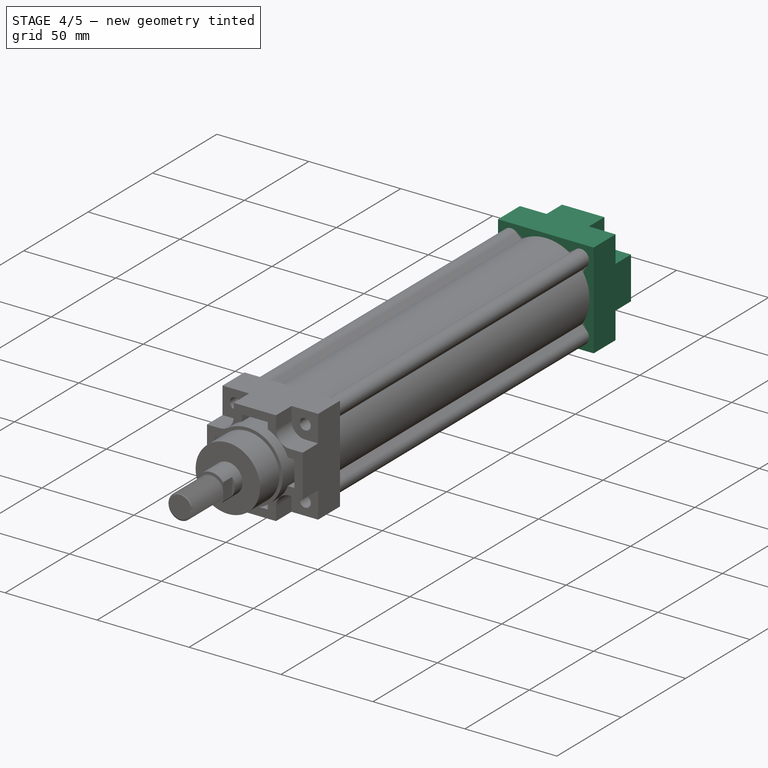
[diagram: stage 4 of 5 — iso view after this stage's code; geometry added in this stage tinted green]
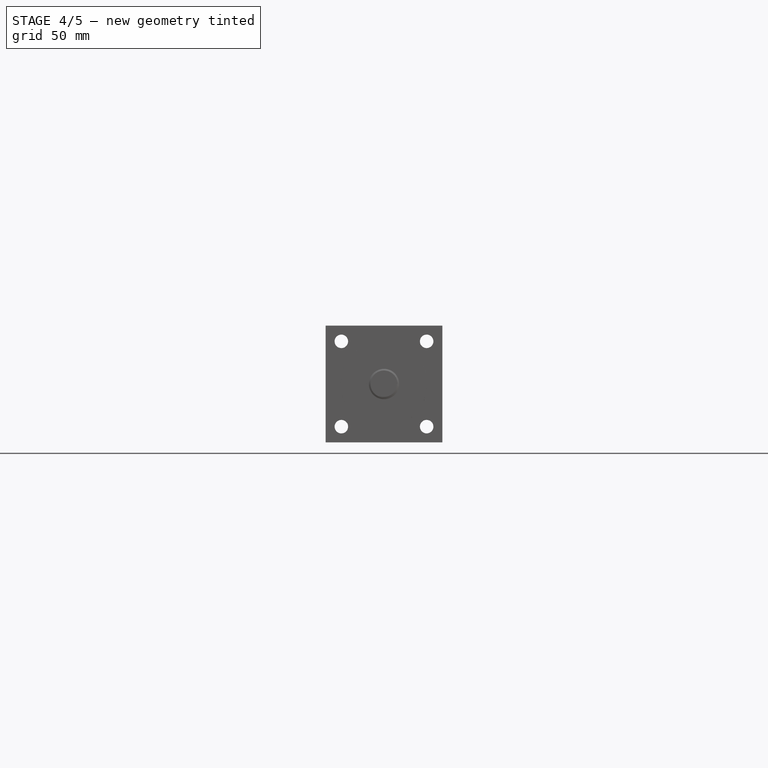
[diagram: stage 4 of 5 — front view after this stage's code; geometry added in this stage tinted green]
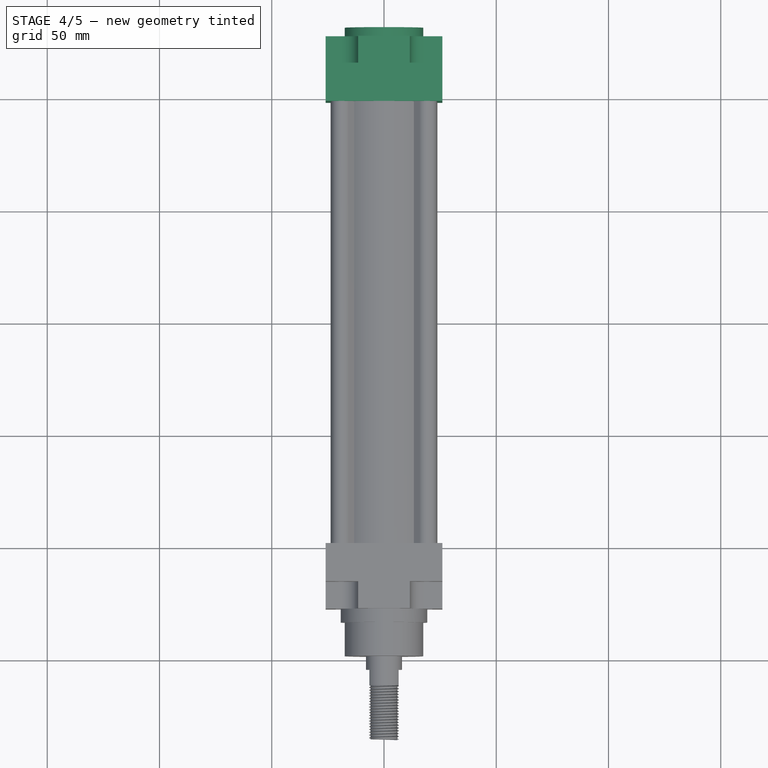
[diagram: stage 4 of 5 — top view after this stage's code; geometry added in this stage tinted green]
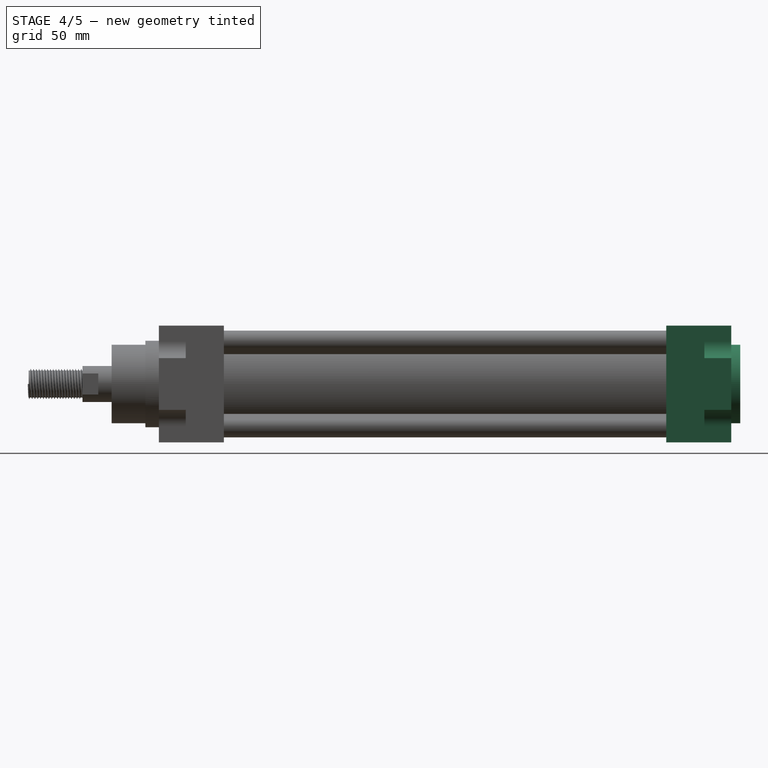
[diagram: stage 4 of 5 — right view after this stage's code; geometry added in this stage tinted green]
FEATURE [PartDesign::Mirrored] Mirrored
  BaseFeature = -> Pad004
  MirrorPlane = -> XZ_Plane001
  Originals = -> [Pad001]
  Placement = pos=(0,0,0) rot=(1,0,0;1.5708rad)
  Refine = true
FEATURE [PartDesign::Mirrored] Mirrored001
  BaseFeature = -> Mirrored
  MirrorPlane = -> XZ_Plane001
  Originals = -> [Pad002]
  Placement = pos=(0,0,0) rot=(1,0,0;1.5708rad)
  Refine = true
FEATURE [Sketcher::SketchObject] Sketch005
  MapMode = 5
  Placement = pos=(0,115.5,1.2e-11) rot=(-1,0,0;1.5708rad)
  Support = -> [Mirrored001]
  expr: Constraints[1] = Medidas.b / 2
  sketch-geometry (1):
    g0: Circle CenterX=0 CenterY=0 CenterZ=0 NormalX=0 NormalY=0 NormalZ=1 AngleXU=0 Radius=17.5
  constraints (2):
    c: Coincident(g0,g-1)
    c: Radius(g0) = 17.5
FEATURE [PartDesign::Pad] Pad005
  BaseFeature = -> Mirrored001
  Length = 16
  Length2 = 100
  Placement = pos=(0,0,0) rot=(1,0,0;1.5708rad)
  Profile = -> Sketch005
  Refine = true
  Type = 0
  expr: Length = Medidas.bg + Medidas.va
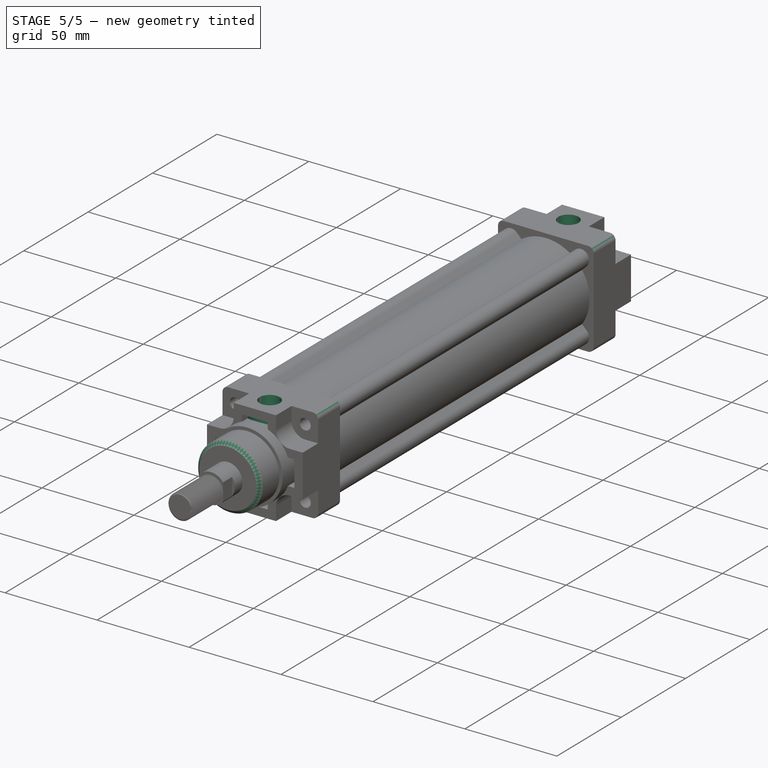
[diagram: stage 5 of 5 — iso view after this stage's code; geometry added in this stage tinted green]
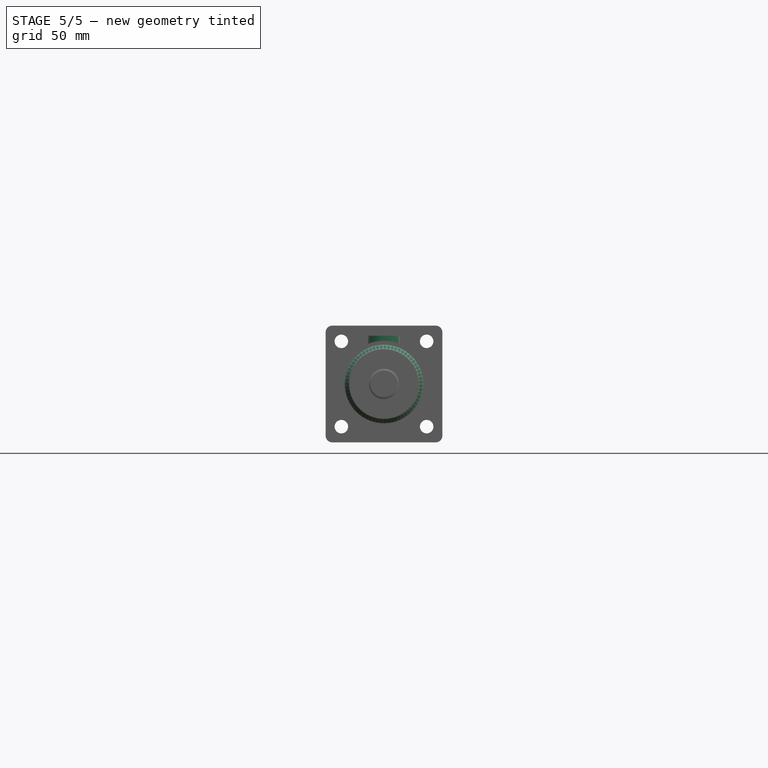
[diagram: stage 5 of 5 — front view after this stage's code; geometry added in this stage tinted green]
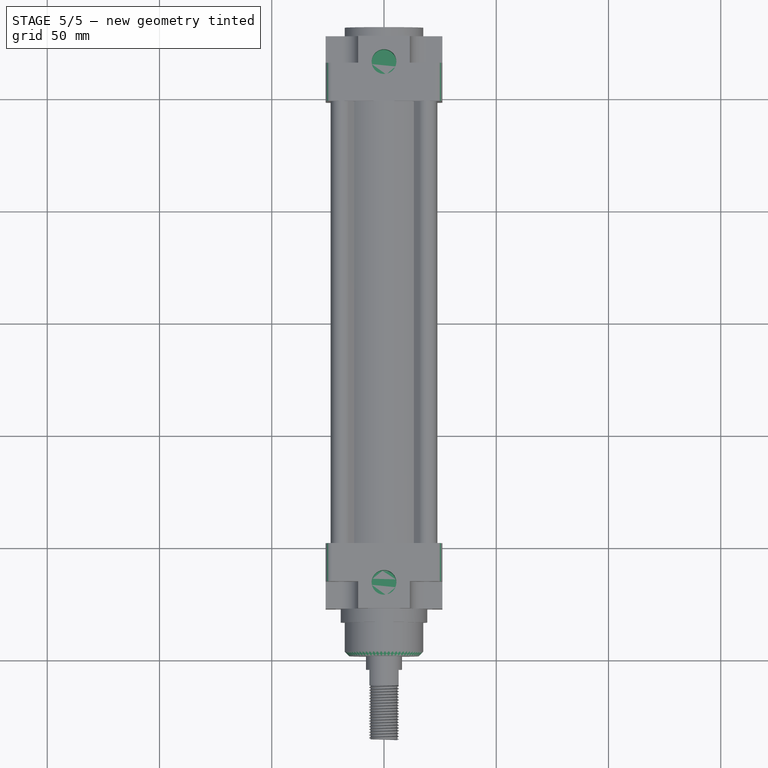
[diagram: stage 5 of 5 — top view after this stage's code; geometry added in this stage tinted green]
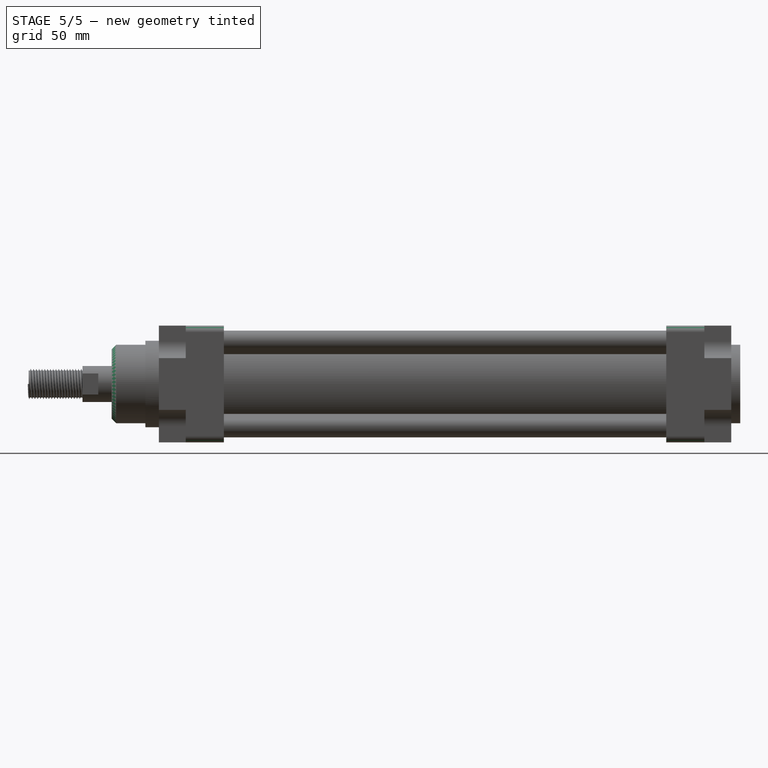
[diagram: stage 5 of 5 — right view after this stage's code; geometry added in this stage tinted green]
FEATURE [PartDesign::Fillet] Fillet
  Base = -> Pad005 [Edge27,Edge21,Edge39,Edge213,Edge201,Edge200,Edge28,Edge207]
  BaseFeature = -> Pad005
  Placement = pos=(0,0,0) rot=(1,0,0;1.5708rad)
  Radius = 3
  expr: Radius = Medidas.rt / 2
FEATURE [PartDesign::Chamfer] Chamfer
  Base = -> Fillet [Edge306]
  BaseFeature = -> Fillet
  Placement = pos=(0,0,0) rot=(1,0,0;1.5708rad)
  Size = 2
FEATURE [Sketcher::SketchObject] Sketch006
  ExternalGeometry = -> [Chamfer]
  MapMode = 5
  Placement = pos=(0,-3e-12,26) rot=(0,0,1;3.14159rad)
  Support = -> [Chamfer]
  expr: Constraints[5] = Medidas.pl
  expr: Constraints[4] = Medidas.pl
  expr: Constraints[3] = Medidas.eee / 2
  sketch-geometry (2):
    g0: Circle CenterX=0 CenterY=116 CenterZ=0 NormalX=0 NormalY=0 NormalZ=1 AngleXU=0 Radius=5.5
    g1: Circle CenterX=0 CenterY=-116 CenterZ=0 NormalX=0 NormalY=0 NormalZ=1 AngleXU=0 Radius=5.5
  constraints (6):
    c: PointOnObject(g0,g-2)
    c: PointOnObject(g1,g-2)
    c: Equal(g1,g0)
    c: Radius(g0) = 5.5
    c: DistanceY(g0,g-4) = 11.5
    c: DistanceY(g-3,g1) = 11.5
FEATURE [PartDesign::Pocket] Pocket
  BaseFeature = -> Chamfer
  Length = 17.5
  Length2 = 100
  Placement = pos=(0,0,0) rot=(1,0,0;1.5708rad)
  Profile = -> Sketch006
  Refine = true
  Type = 0
  expr: Length = Medidas.b / 2
FEATURE [Sketcher::SketchObject] Sketch007
  ExternalGeometry = -> [Pocket]
  MapMode = 5
  Placement = pos=(0,-3e-12,26) rot=(0,0,1;3.14159rad)
  Support = -> [Pocket]
  expr: Constraints[6] = Medidas.eee * 0.90000000000000002
  sketch-geometry (4):
    g0: Circle CenterX=0 CenterY=116 CenterZ=0 NormalX=0 NormalY=0 NormalZ=1 AngleXU=0 Radius=5.5
    g1: Circle CenterX=0 CenterY=116 CenterZ=0 NormalX=0 NormalY=0 NormalZ=1 AngleXU=0 Radius=9.9
    g2: Circle CenterX=0 CenterY=-116 CenterZ=0 NormalX=0 NormalY=0 NormalZ=1 AngleXU=0 Radius=5.5
    g3: Circle CenterX=0 CenterY=-116 CenterZ=0 NormalX=0 NormalY=0 NormalZ=1 AngleXU=0 Radius=9.9
  constraints (8):
    c: Coincident(g0,g-4)
    c: Coincident(g1,g0)
    c: Coincident(g2,g-3)
    c: Coincident(g3,g2)
    c: Equal(g2,g0)
    c: Equal(g1,g3)
    c: Radius(g3) = 9.9
    c: Equal(g2,g-3)
FEATURE [PartDesign::Pad] Pad006
  BaseFeature = -> Pocket
  Length = 17.5
  Length2 = 100
  Placement = pos=(0,0,0) rot=(1,0,0;1.5708rad)
  Profile = -> Sketch007
  Refine = true
  Reversed = true
  Type = 0
  expr: Length = Medidas.b / 2
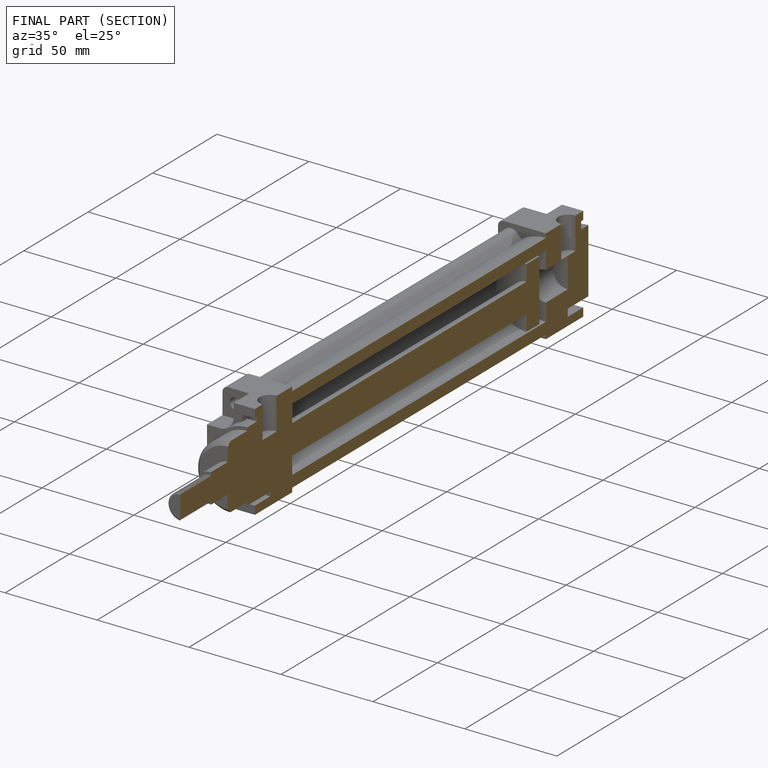
[diagram: finished part — half-section view (interior)]
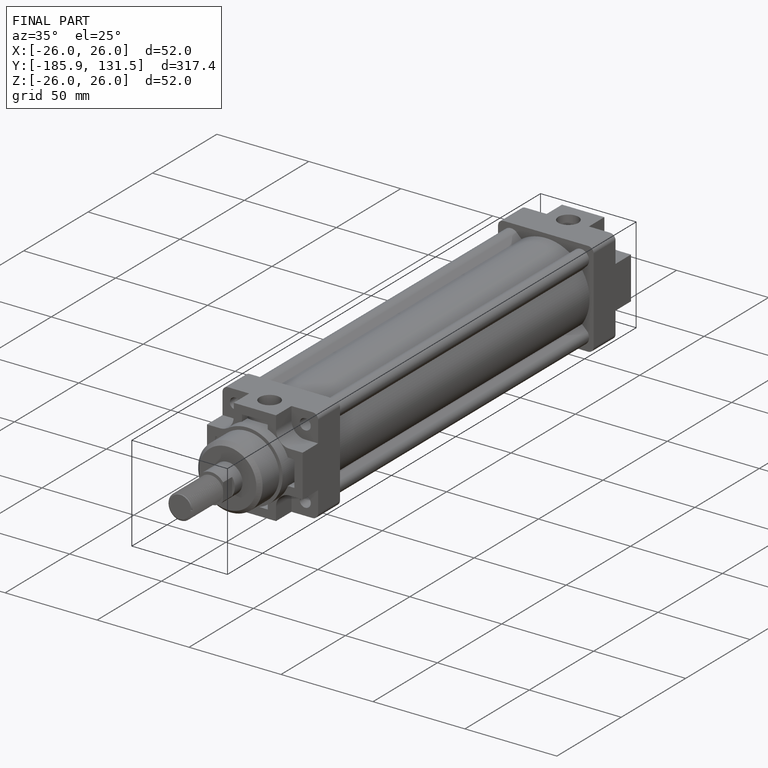
[diagram: finished part — iso view with bounding-box wireframe]
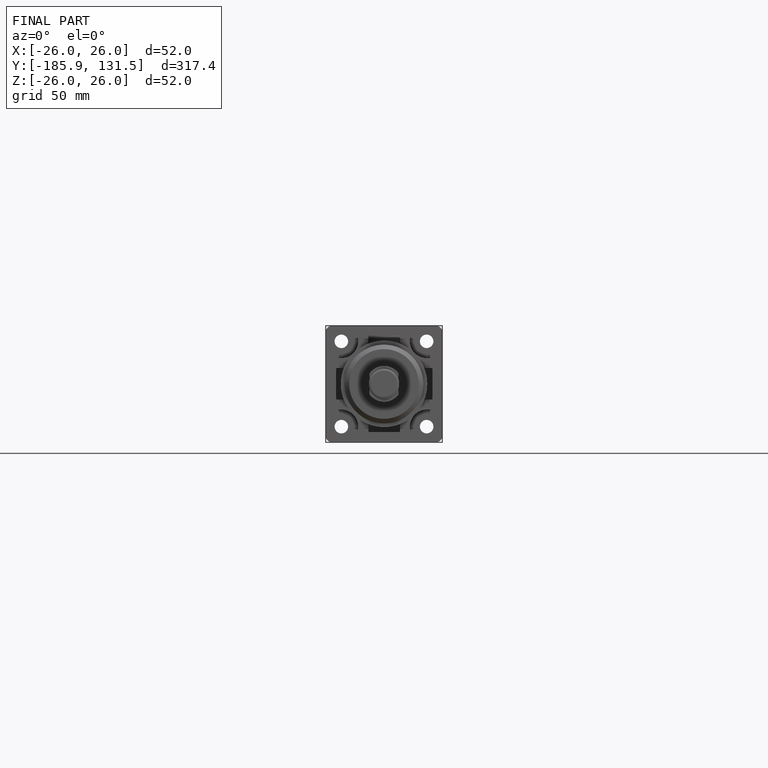
[diagram: finished part — front view with bounding-box wireframe]
